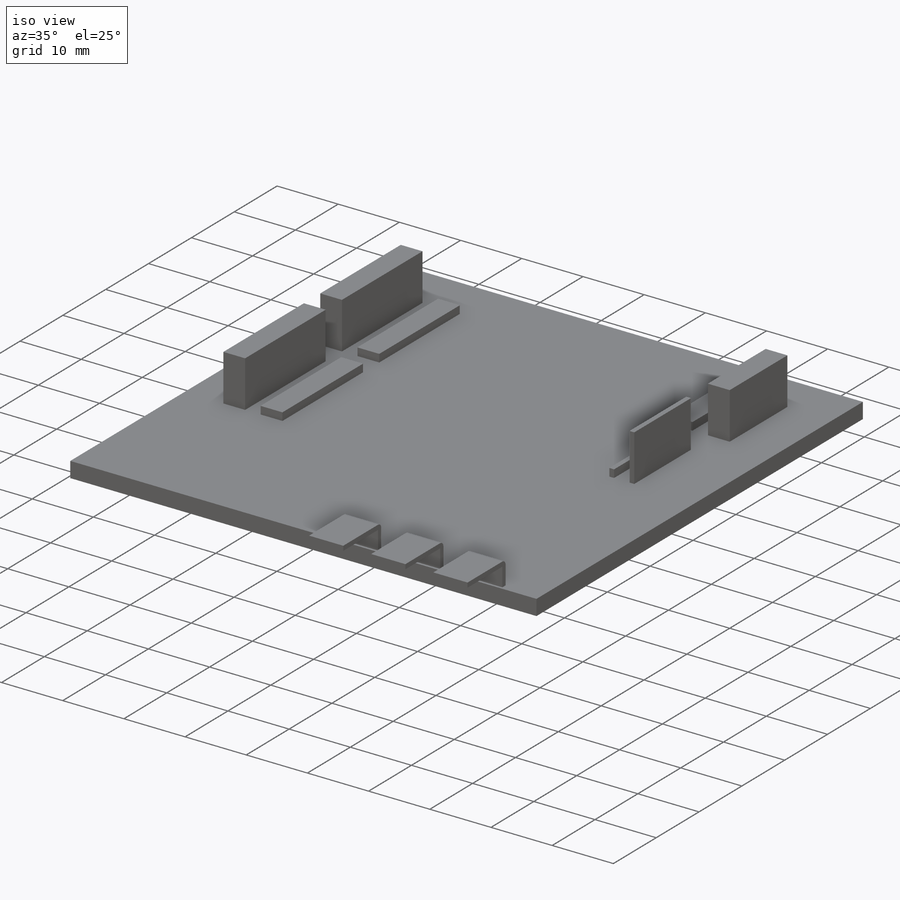
[diagram: iso view]
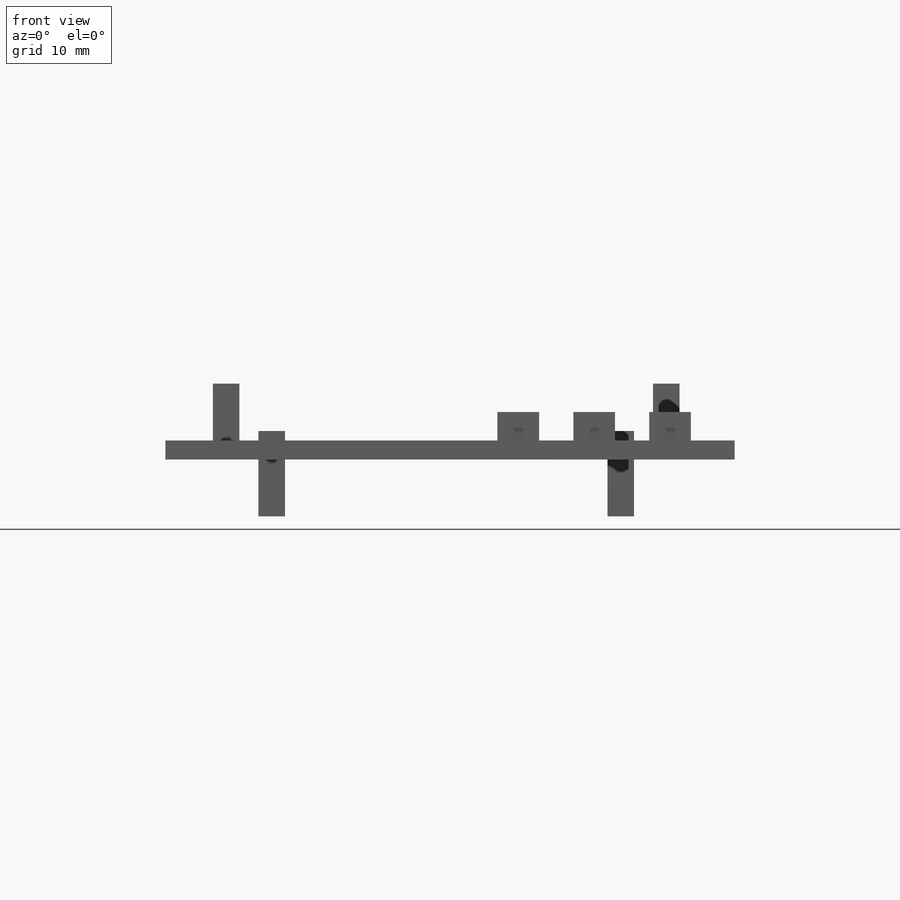
[diagram: front view]
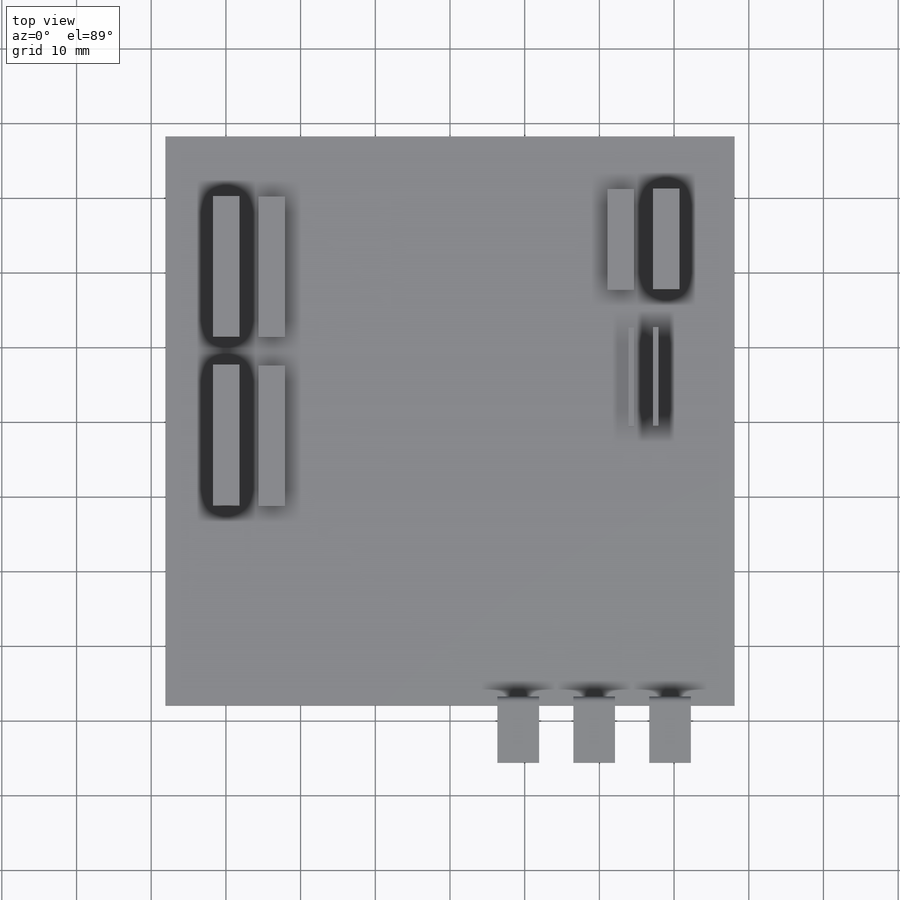
[diagram: top view]
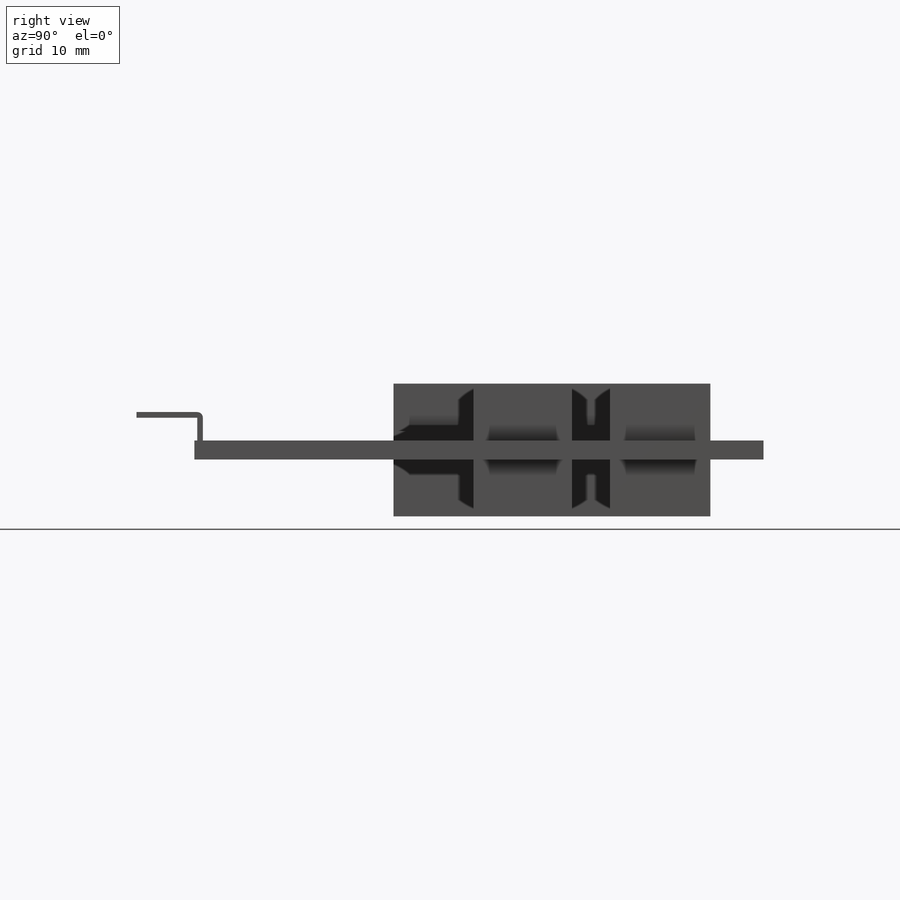
[diagram: right view]
SOLIDWORKS PART (.sldprt)
format: sldprt  version: not decoded by parser v0  size: 314,880 bytes
history: native  units: mm
features: sketch x7, extrude x5, pattern_linear x2, material x1, revolve x1, cut_extrude x1 (+16 scaffold rows collapsed)
feature tree (33):
  scaffold x16  (default folders/planes/origin — collapsed)
  material  "Custom Plastic"
  sketch  "Sketch1"  dims[D1=76.2mm]
  extrude  "Extrude1"  Depth=2.54mm
  sketch  "Sketch2"  dims[D1=18.796mm]
  extrude  "Extrude2"  Depth=1.27mm
  sketch  "Sketch3"  dims[D1=44.45mm]
  extrude  "Extrude3"  Depth=3.048mm
  pattern_linear  "LPattern1"  Count1=3 Count2=1 Spacing1=10.16mm Spacing2=2.54mm
  sketch  "Sketch8"
  revolve  "Revolve3"  Angle=90deg
  sketch  "Sketch9"  dims[D1=0.762mm]
  extrude  "Extrude5"  Depth=8.128mm
  pattern_linear  "LPattern2"  Count1=3 Count2=1 Spacing1=10.16mm Spacing2=2.54mm
  sketch  "Sketch11"
  extrude  "Extrude6"  Depth=6.35mm
  sketch  "Sketch12"
  cut_extrude  "Extrude7"  [1 undecoded]
decode coverage: 12 of 16 modeling features carry decoded parameters
note: 1 parameter value undecoded
note: suppression state not decoded; provenance and decode notes live in map.json
